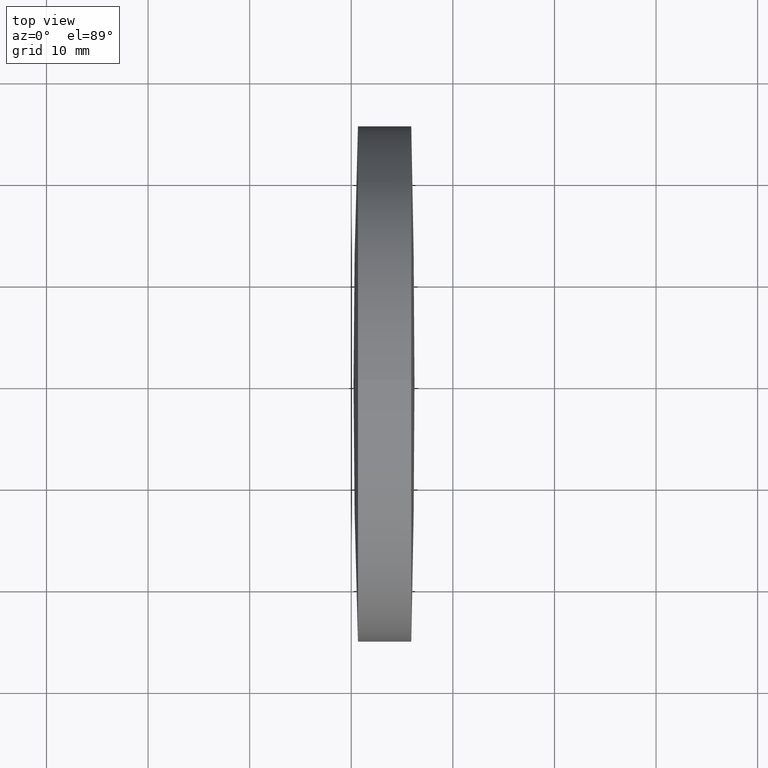
[diagram: clean part render]
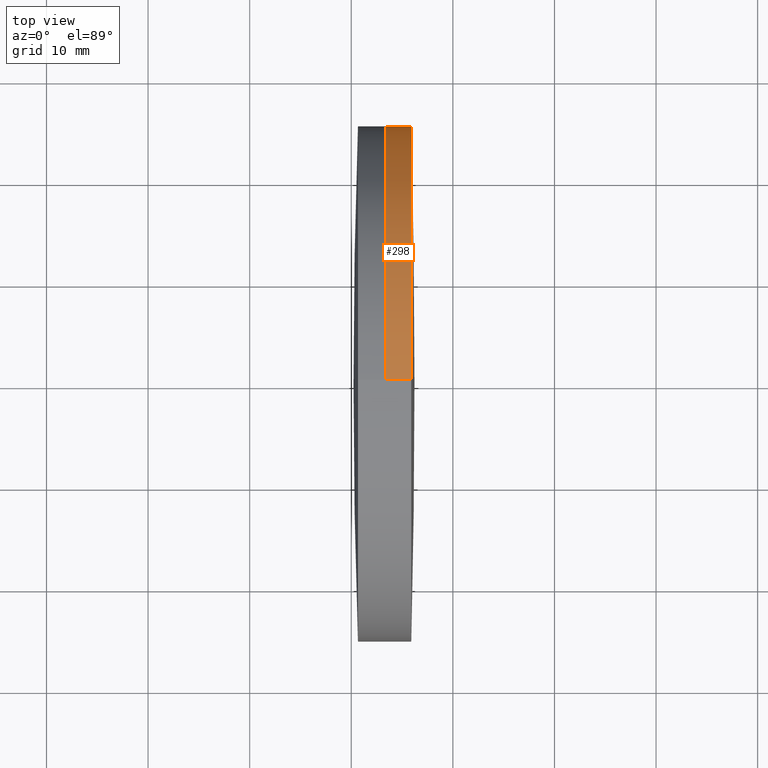
[diagram: same view with one face highlighted and labeled with its STEP entity id]
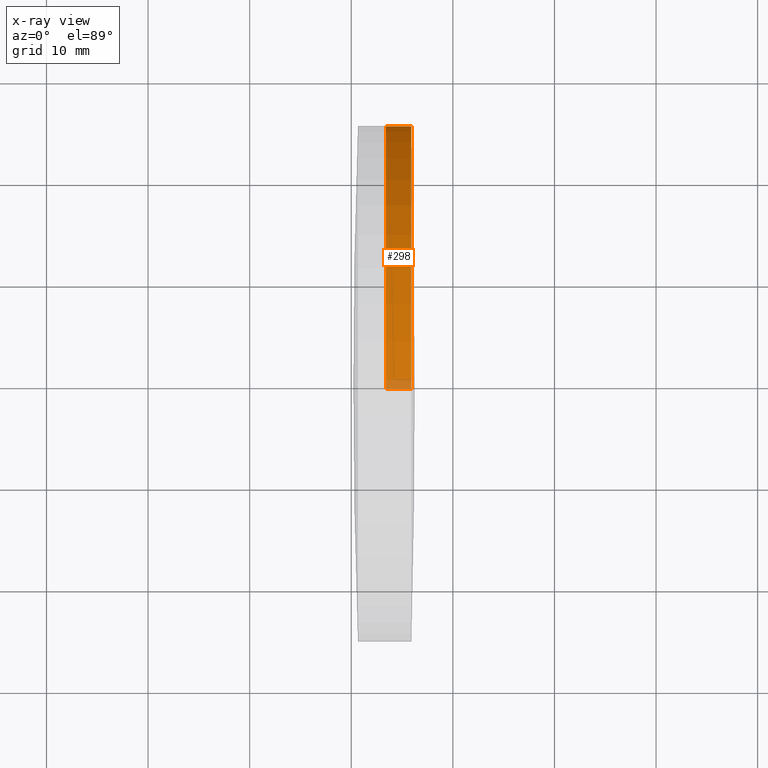
[diagram: x-ray of the same camera — body ghosted, the highlighted face saturated]
A machine part, top view. The second image highlights one B-rep face of the part: STEP entity #298.
The next image is the same camera in x-ray: the body ghosted, the highlighted face saturated — about 3% of this face is hidden behind the body in this view.
In plain terms, the highlighted cylindrical surface (partial cylindrical patch) has radius 25.4 mm, axis along (-1, -0, -0).
Its self-contained STEP definition (entity closure, byte-faithful):
#8 = VERTEX_POINT ( 'NONE', #244 ) ;
#19 = DIRECTION ( 'NONE',  ( 0.0000000000000000000, 0.0000000000000000000, 1.000000000000000000 ) ) ;
#27 = AXIS2_PLACEMENT_3D ( 'NONE', #308, #48, #19 ) ;
#29 = ORIENTED_EDGE ( 'NONE', *, *, #216, .T. ) ;
#31 = CARTESIAN_POINT ( 'NONE',  ( 615.9062923119943200, 0.0000000000000000000, 25.39999999999895800 ) ) ;
#37 = VECTOR ( 'NONE', #241, 1000.000000000000000 ) ;
#41 = CARTESIAN_POINT ( 'NONE',  ( 613.4104506559709800, 3.110602869834183000E-015, -25.39999999999914600 ) ) ;
#48 = DIRECTION ( 'NONE',  ( -1.000000000000000000, -0.0000000000000000000, -0.0000000000000000000 ) ) ;
#75 = VERTEX_POINT ( 'NONE', #31 ) ;
#80 = EDGE_CURVE ( 'NONE', #75, #8, #291, .T. ) ;
#97 = DIRECTION ( 'NONE',  ( -1.000000000000000000, -0.0000000000000000000, -0.0000000000000000000 ) ) ;
#101 = CARTESIAN_POINT ( 'NONE',  ( 613.4104506559709800, 0.0000000000000000000, 0.0000000000000000000 ) ) ;
#107 = CARTESIAN_POINT ( 'NONE',  ( -0.5519199926577972300, 0.0000000000000000000, 25.39999999999916000 ) ) ;
#116 = VECTOR ( 'NONE', #171, 1000.000000000000000 ) ;
#119 = DIRECTION ( 'NONE',  ( 0.0000000000000000000, 0.0000000000000000000, 1.000000000000000000 ) ) ;
#125 = EDGE_LOOP ( 'NONE', ( #29, #272, #321, #137 ) ) ;
#137 = ORIENTED_EDGE ( 'NONE', *, *, #80, .F. ) ;
#143 = AXIS2_PLACEMENT_3D ( 'NONE', #101, #97, #119 ) ;
#148 = VERTEX_POINT ( 'NONE', #221 ) ;
#150 = DIRECTION ( 'NONE',  ( -1.000000000000000000, -0.0000000000000000000, -0.0000000000000000000 ) ) ;
#171 = DIRECTION ( 'NONE',  ( -1.000000000000000000, -0.0000000000000000000, -0.0000000000000000000 ) ) ;
#202 = CARTESIAN_POINT ( 'NONE',  ( -0.5519199926577972300, 3.110602869834174300E-015, -25.39999999999916000 ) ) ;
#216 = EDGE_CURVE ( 'NONE', #75, #148, #279, .T. ) ;
#221 = CARTESIAN_POINT ( 'NONE',  ( 615.9062923119943200, 3.110602869834161700E-015, -25.39999999999895800 ) ) ;
#235 = CYLINDRICAL_SURFACE ( 'NONE', #27, 25.39999999999916000 ) ;
#241 = DIRECTION ( 'NONE',  ( -1.000000000000000000, -0.0000000000000000000, -0.0000000000000000000 ) ) ;
#242 = VERTEX_POINT ( 'NONE', #41 ) ;
#244 = CARTESIAN_POINT ( 'NONE',  ( 613.4104506559709800, 0.0000000000000000000, 25.39999999999923100 ) ) ;
#249 = EDGE_CURVE ( 'NONE', #148, #242, #265, .T. ) ;
#253 = FACE_OUTER_BOUND ( 'NONE', #125, .T. ) ;
#265 = LINE ( 'NONE', #202, #116 ) ;
#272 = ORIENTED_EDGE ( 'NONE', *, *, #249, .T. ) ;
#279 = CIRCLE ( 'NONE', #333, 25.39999999999895800 ) ;
#287 = EDGE_CURVE ( 'NONE', #8, #242, #315, .T. ) ;
#291 = LINE ( 'NONE', #107, #37 ) ;
#298 = ADVANCED_FACE ( 'NONE', ( #253 ), #235, .T. ) ;
#308 = CARTESIAN_POINT ( 'NONE',  ( -0.5519199926577972300, 0.0000000000000000000, 0.0000000000000000000 ) ) ;
#310 = DIRECTION ( 'NONE',  ( 0.0000000000000000000, 0.0000000000000000000, 1.000000000000000000 ) ) ;
#315 = CIRCLE ( 'NONE', #143, 25.39999999999935600 ) ;
#321 = ORIENTED_EDGE ( 'NONE', *, *, #287, .F. ) ;
#333 = AXIS2_PLACEMENT_3D ( 'NONE', #339, #150, #310 ) ;
#339 = CARTESIAN_POINT ( 'NONE',  ( 615.9062923119943200, 0.0000000000000000000, 0.0000000000000000000 ) ) ;